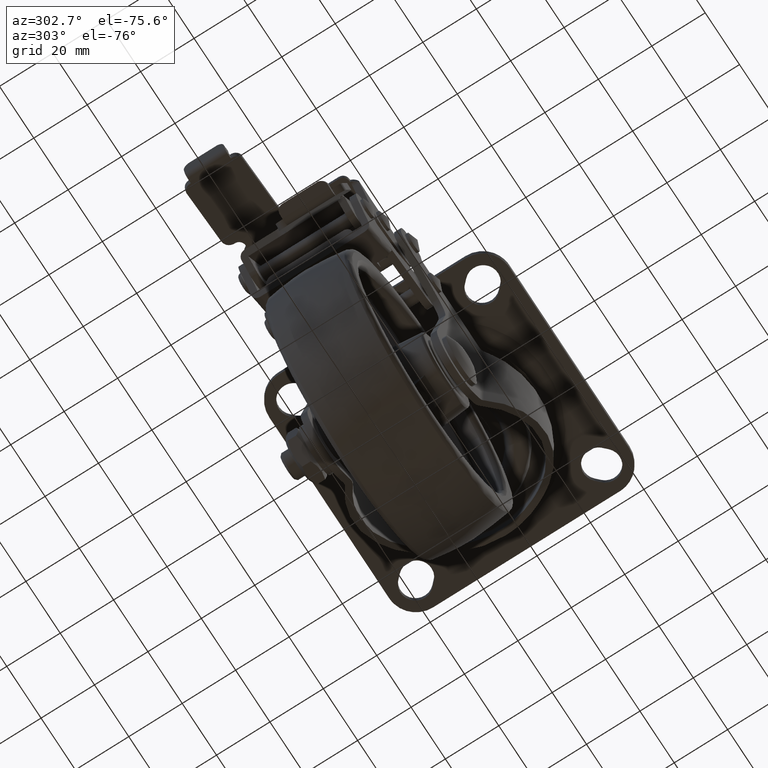
[diagram: clean part render]
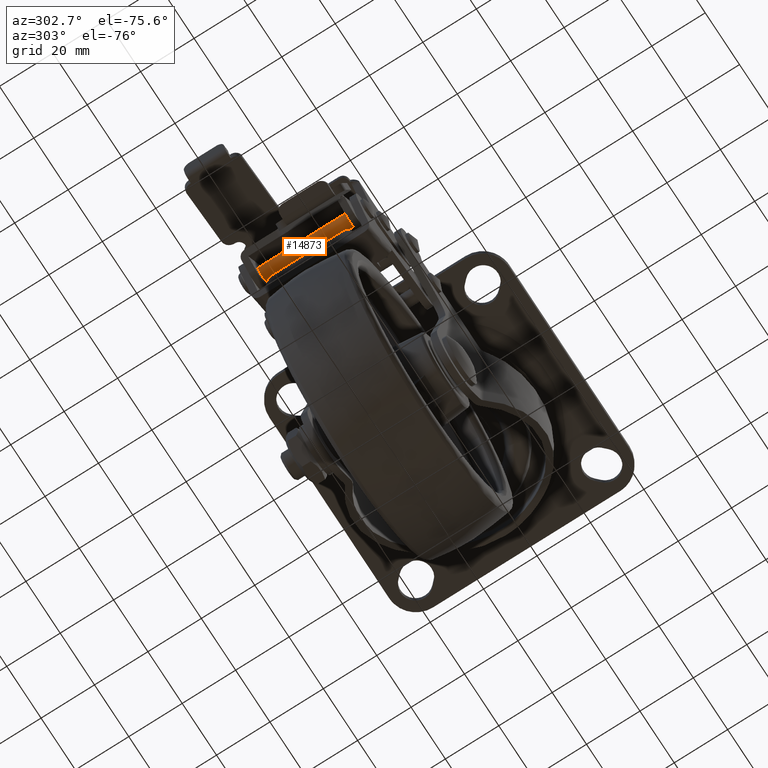
[diagram: same view with one face highlighted and labeled with its STEP entity id]
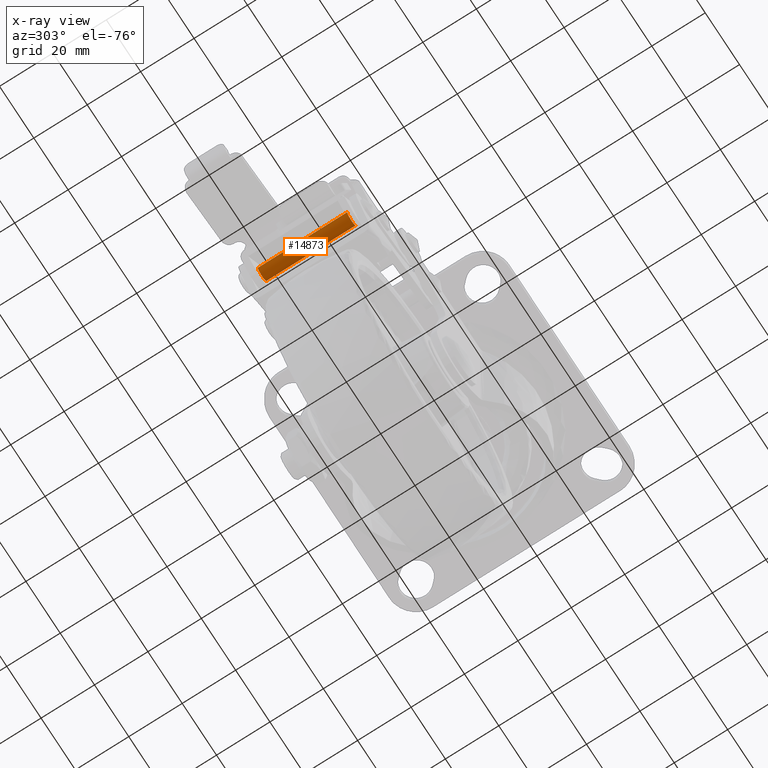
[diagram: x-ray of the same camera — body ghosted, the highlighted face saturated]
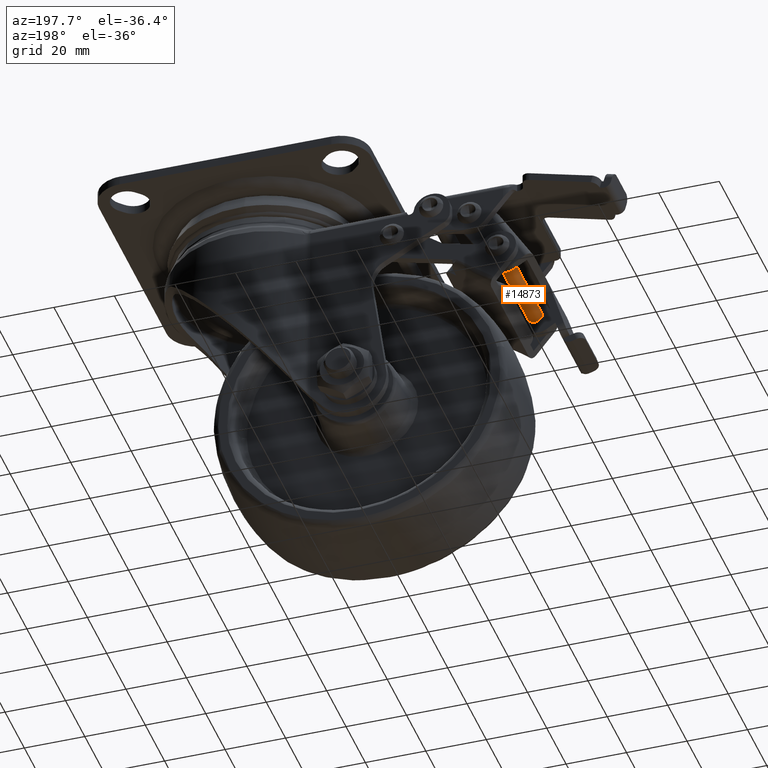
[diagram: same view with one face highlighted and labeled with its STEP entity id]
A machine part, auxiliary view. The second image highlights one B-rep face of the part: STEP entity #14873.
The next image is the same camera in x-ray: the body ghosted, the highlighted face saturated — about 0% of this face is hidden behind the body in this view.
A second angle (auxiliary view) of the same face is appended — the face is thin or edge-on in the first view.
In plain terms, the highlighted face is a freeform B-spline surface patch.
Its self-contained STEP definition (entity closure, byte-faithful):
#14710=CARTESIAN_POINT('',(-80.243812893317937,16.989999999999998,-37.571273900510747));
#14711=VERTEX_POINT('',#14710);
#14727=CARTESIAN_POINT('',(-85.243622508619069,16.989999999999998,-37.614906580261248));
#14728=VERTEX_POINT('',#14727);
#14744=CARTESIAN_POINT('',(-85.243622508619538,-16.489999999999998,-37.614906580208327));
#14745=VERTEX_POINT('',#14744);
#14746=CARTESIAN_POINT('',(-85.243622508619069,16.989999999999998,-37.614906580261248));
#14747=CARTESIAN_POINT('',(-85.243622508619538,-16.489999999999998,-37.614906580208327));
#14748=QUASI_UNIFORM_CURVE('',1,(#14746,#14747),.UNSPECIFIED.,.F.,.U.);
#14749=EDGE_CURVE('',#14728,#14745,#14748,.T.);
#14768=CARTESIAN_POINT('',(-80.243812893317468,-16.489999999999998,-37.571273900563668));
#14769=VERTEX_POINT('',#14768);
#14783=CARTESIAN_POINT('',(-80.243812893317937,16.989999999999998,-37.571273900510747));
#14784=CARTESIAN_POINT('',(-80.243812893317468,-16.489999999999998,-37.571273900563668));
#14785=QUASI_UNIFORM_CURVE('',1,(#14783,#14784),.UNSPECIFIED.,.F.,.U.);
#14786=EDGE_CURVE('',#14711,#14769,#14785,.T.);
#14791=CARTESIAN_POINT('',(-85.243622508628931,17.827000000000009,-37.614906579131933));
#14792=CARTESIAN_POINT('',(-85.221806169882996,17.827000000000009,-40.114811386792375));
#14793=CARTESIAN_POINT('',(-82.721901362222567,17.827000000000009,-40.092995048046433));
#14794=CARTESIAN_POINT('',(-80.221996554562139,17.827000000000009,-40.071178709300497));
#14795=CARTESIAN_POINT('',(-80.243812893308075,17.827000000000009,-37.571273901640062));
#14796=CARTESIAN_POINT('',(-85.243622508628931,-17.347925000000000,-37.614906579131933));
#14797=CARTESIAN_POINT('',(-85.221806169882996,-17.347925000000000,-40.114811386792375));
#14798=CARTESIAN_POINT('',(-82.721901362222567,-17.347925000000000,-40.092995048046433));
#14799=CARTESIAN_POINT('',(-80.221996554562139,-17.347925000000000,-40.071178709300497));
#14800=CARTESIAN_POINT('',(-80.243812893308075,-17.347925000000000,-37.571273901640062));
#14808=(BOUNDED_SURFACE()B_SPLINE_SURFACE(2,1,((#14791,#14796),(#14792,#14797),(#14793,#14798),(#14794,#14799),(#14795,#14800)),.UNSPECIFIED.,.F.,.F.,.U.)B_SPLINE_SURFACE_WITH_KNOTS((3,2,3),(2,2),(0.0,4.142135623730940,8.284271247461879),(0.0,35.174925000000009),.UNSPECIFIED.)GEOMETRIC_REPRESENTATION_ITEM()RATIONAL_B_SPLINE_SURFACE(((1.0,1.0),(0.707106781186548,0.707106781186548),(1.0,1.0),(0.707106781186548,0.707106781186548),(1.0,1.0)))REPRESENTATION_ITEM('')SURFACE());
#14809=CARTESIAN_POINT('',(-82.743717700968503,16.989999999999998,-40.093090240385997));
#14810=VERTEX_POINT('',#14809);
#14811=CARTESIAN_POINT('',(-82.743717700968503,16.989999999999998,-40.093090240385997));
#14812=CARTESIAN_POINT('',(-80.243717700968503,16.990000000000009,-40.093090240386005));
#14813=CARTESIAN_POINT('',(-80.243717700968503,16.989999999999998,-37.593090240385997));
#14814=CARTESIAN_POINT('',(-80.243717700968503,16.990000000000002,-37.582181862769552));
#14815=CARTESIAN_POINT('',(-80.243812893317951,16.990000000000009,-37.571273900510747));
#14823=(BOUNDED_CURVE()B_SPLINE_CURVE(2,(#14811,#14812,#14813,#14814,#14815),.UNSPECIFIED.,.F.,.U.)B_SPLINE_CURVE_WITH_KNOTS((3,2,3),(0.0,0.250000000000000,0.251539894414559),.UNSPECIFIED.)CURVE()GEOMETRIC_REPRESENTATION_ITEM()RATIONAL_B_SPLINE_CURVE((1.0,0.707106781186548,1.0,0.998195901473148,0.996414027916255))REPRESENTATION_ITEM(''));
#14824=EDGE_CURVE('',#14810,#14711,#14823,.T.);
#14825=ORIENTED_EDGE('',*,*,#14824,.T.);
#14826=ORIENTED_EDGE('',*,*,#14786,.T.);
#14827=CARTESIAN_POINT('',(-82.743717700968503,-16.489999999999998,-40.093090240385997));
#14828=VERTEX_POINT('',#14827);
#14829=CARTESIAN_POINT('',(-80.243812893317468,-16.490000000000002,-37.571273900563668));
#14830=CARTESIAN_POINT('',(-80.243717700968503,-16.490000000000009,-37.582181862796020));
#14831=CARTESIAN_POINT('',(-80.243717700968503,-16.489999999999998,-37.593090240385997));
#14832=CARTESIAN_POINT('',(-80.243717700968503,-16.490000000000002,-40.093090240386005));
#14833=CARTESIAN_POINT('',(-82.743717700968503,-16.489999999999998,-40.093090240385997));
#14841=(BOUNDED_CURVE()B_SPLINE_CURVE(2,(#14829,#14830,#14831,#14832,#14833),.UNSPECIFIED.,.F.,.U.)B_SPLINE_CURVE_WITH_KNOTS((3,2,3),(0.748460105589171,0.750000000000000,1.0),.UNSPECIFIED.)CURVE()GEOMETRIC_REPRESENTATION_ITEM()RATIONAL_B_SPLINE_CURVE((0.996414027924886,0.998195901477517,1.0,0.707106781186548,1.0))REPRESENTATION_ITEM(''));
#14842=EDGE_CURVE('',#14769,#14828,#14841,.T.);
#14843=ORIENTED_EDGE('',*,*,#14842,.T.);
#14844=CARTESIAN_POINT('',(-82.743717700968503,-16.489999999999998,-40.093090240385997));
#14845=CARTESIAN_POINT('',(-85.221995726388855,-16.490000000000013,-40.093090240385997));
#14846=CARTESIAN_POINT('',(-85.243622508619524,-16.489999999999995,-37.614906580208320));
#14854=(BOUNDED_CURVE()B_SPLINE_CURVE(2,(#14844,#14845,#14846),.UNSPECIFIED.,.F.,.U.)B_SPLINE_CURVE_WITH_KNOTS((3,3),(0.0,0.248460105589170),.UNSPECIFIED.)CURVE()GEOMETRIC_REPRESENTATION_ITEM()RATIONAL_B_SPLINE_CURVE((1.0,0.708910879709030,0.996414027924885))REPRESENTATION_ITEM(''));
#14855=EDGE_CURVE('',#14828,#14745,#14854,.T.);
#14856=ORIENTED_EDGE('',*,*,#14855,.T.);
#14857=ORIENTED_EDGE('',*,*,#14749,.F.);
#14858=CARTESIAN_POINT('',(-85.243622508619069,16.989999999999998,-37.614906580261241));
#14859=CARTESIAN_POINT('',(-85.221995726336345,16.989999999999998,-40.093090240385997));
#14860=CARTESIAN_POINT('',(-82.743717700968503,16.989999999999998,-40.093090240385997));
#14868=(BOUNDED_CURVE()B_SPLINE_CURVE(2,(#14858,#14859,#14860),.UNSPECIFIED.,.F.,.U.)B_SPLINE_CURVE_WITH_KNOTS((3,3),(0.751539894414558,1.0),.UNSPECIFIED.)CURVE()GEOMETRIC_REPRESENTATION_ITEM()RATIONAL_B_SPLINE_CURVE((0.996414027916256,0.708910879713399,1.0))REPRESENTATION_ITEM(''));
#14869=EDGE_CURVE('',#14728,#14810,#14868,.T.);
#14870=ORIENTED_EDGE('',*,*,#14869,.T.);
#14871=EDGE_LOOP('',(#14825,#14826,#14843,#14856,#14857,#14870));
#14872=FACE_OUTER_BOUND('',#14871,.T.);
#14873=ADVANCED_FACE('',(#14872),#14808,.T.);